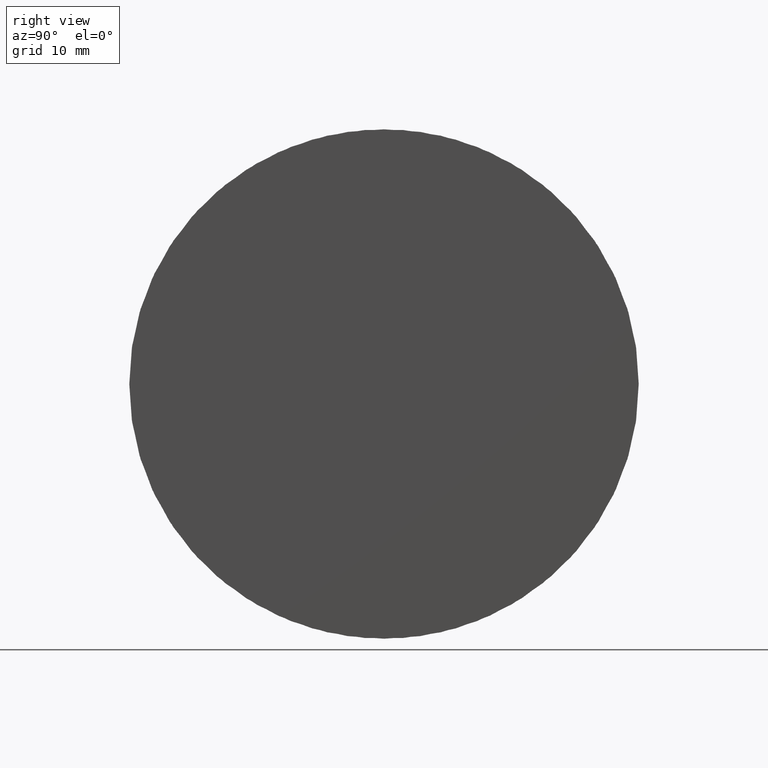
[diagram: clean part render]
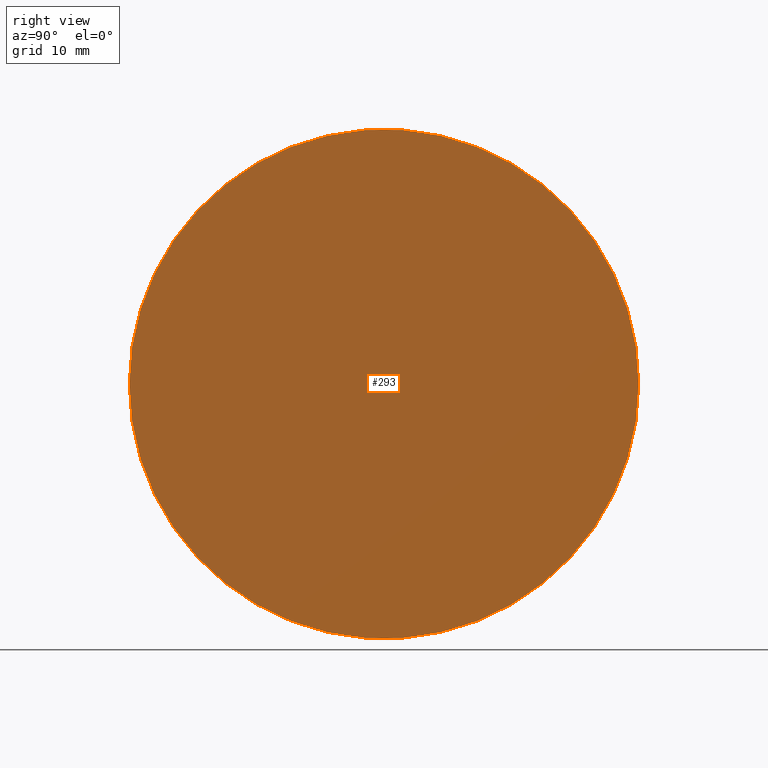
[diagram: same view with one face highlighted and labeled with its STEP entity id]
A machine part, right view. The second image highlights one B-rep face of the part: STEP entity #293.
In plain terms, the highlighted planar face has unit normal (1, 0, -0).
Its self-contained STEP definition (entity closure, byte-faithful):
#6 = CIRCLE ( 'NONE', #258, 25.39999999999999858 ) ;
#16 = PLANE ( 'NONE',  #332 ) ;
#44 = CARTESIAN_POINT ( 'NONE',  ( -94.28535173173268902, 42.98894564919700656, 0.000000000000000000 ) ) ;
#47 = VERTEX_POINT ( 'NONE', #291 ) ;
#97 = DIRECTION ( 'NONE',  ( 0.000000000000000000, 1.000000000000000000, 0.000000000000000000 ) ) ;
#127 = DIRECTION ( 'NONE',  ( 1.000000000000000000, 1.224646799147352961E-16, -0.000000000000000000 ) ) ;
#131 = EDGE_CURVE ( 'NONE', #47, #257, #6, .T. ) ;
#152 = CARTESIAN_POINT ( 'NONE',  ( -94.28535173173268902, 42.98894564919700656, 0.000000000000000000 ) ) ;
#163 = ORIENTED_EDGE ( 'NONE', *, *, #225, .T. ) ;
#172 = ORIENTED_EDGE ( 'NONE', *, *, #131, .T. ) ;
#182 = CARTESIAN_POINT ( 'NONE',  ( -94.28535173173268902, 17.58894564919701153, 0.000000000000000000 ) ) ;
#183 = FACE_OUTER_BOUND ( 'NONE', #194, .T. ) ;
#194 = EDGE_LOOP ( 'NONE', ( #163, #172 ) ) ;
#197 = DIRECTION ( 'NONE',  ( 1.000000000000000000, 1.224646799147352961E-16, -0.000000000000000000 ) ) ;
#211 = DIRECTION ( 'NONE',  ( -1.224646799147352961E-16, 1.000000000000000000, 0.000000000000000000 ) ) ;
#225 = EDGE_CURVE ( 'NONE', #257, #47, #272, .T. ) ;
#233 = DIRECTION ( 'NONE',  ( 0.000000000000000000, 1.000000000000000000, 0.000000000000000000 ) ) ;
#257 = VERTEX_POINT ( 'NONE', #44 ) ;
#258 = AXIS2_PLACEMENT_3D ( 'NONE', #286, #197, #233 ) ;
#264 = AXIS2_PLACEMENT_3D ( 'NONE', #182, #127, #97 ) ;
#270 = DIRECTION ( 'NONE',  ( 1.000000000000000000, 1.224646799147352961E-16, -0.000000000000000000 ) ) ;
#272 = CIRCLE ( 'NONE', #264, 25.39999999999999858 ) ;
#286 = CARTESIAN_POINT ( 'NONE',  ( -94.28535173173268902, 17.58894564919701153, 0.000000000000000000 ) ) ;
#291 = CARTESIAN_POINT ( 'NONE',  ( -94.28535173173268902, -7.811054350802988822, 3.110602869834276865E-15 ) ) ;
#293 = ADVANCED_FACE ( 'NONE', ( #183 ), #16, .T. ) ;
#332 = AXIS2_PLACEMENT_3D ( 'NONE', #152, #270, #211 ) ;